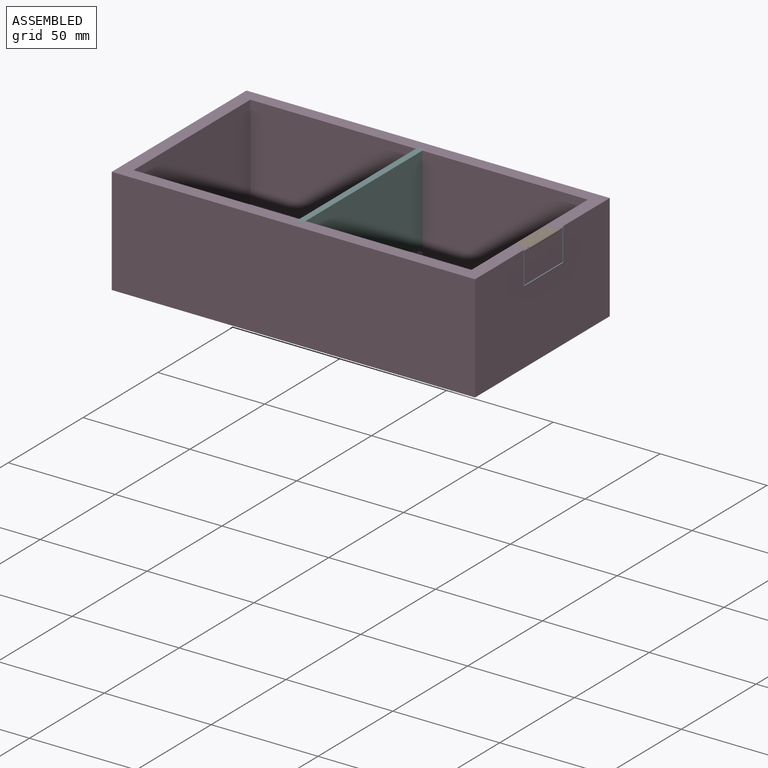
[diagram: assembled view]
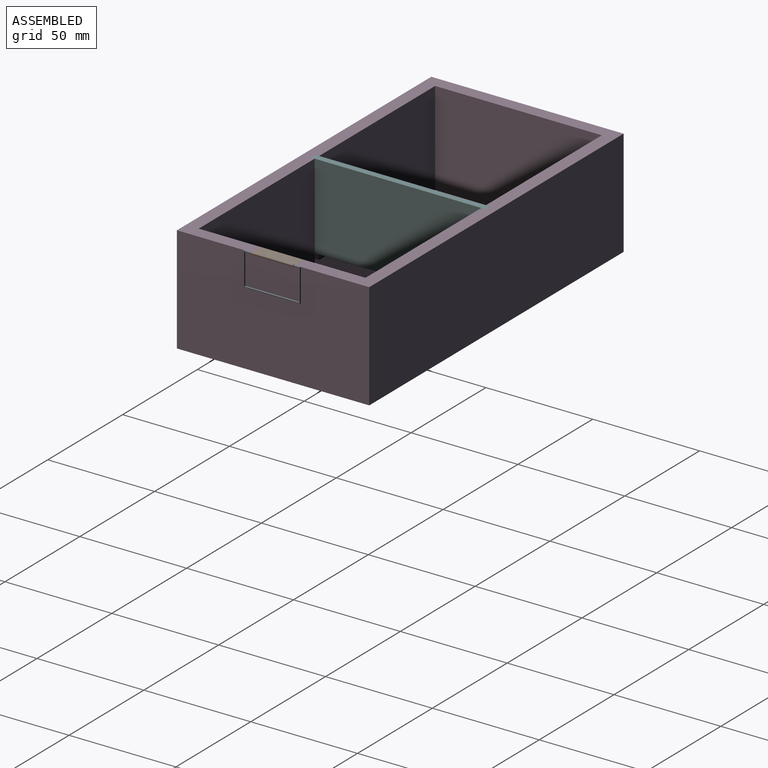
[diagram: assembled view, second angle]
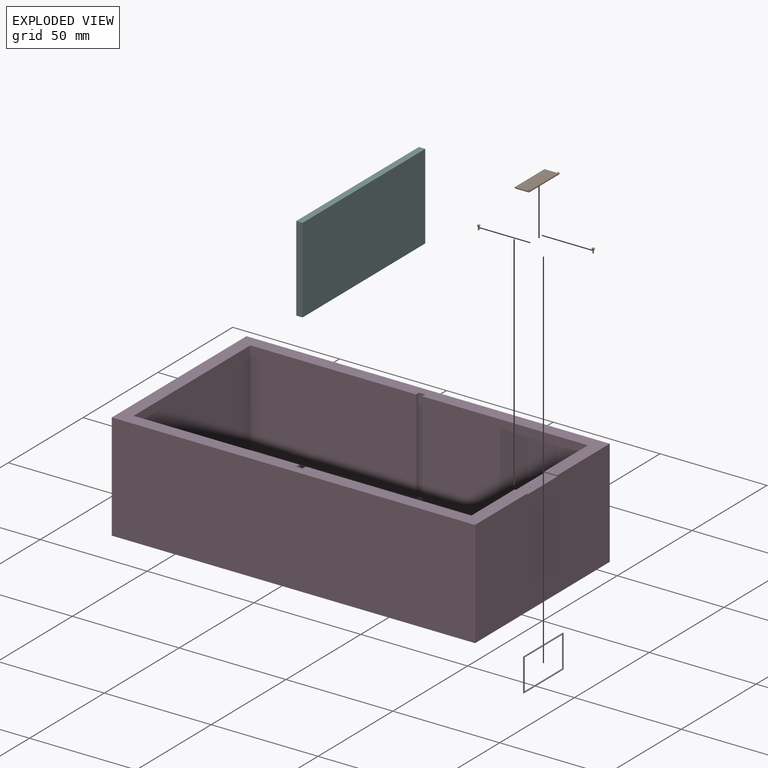
[diagram: exploded view]
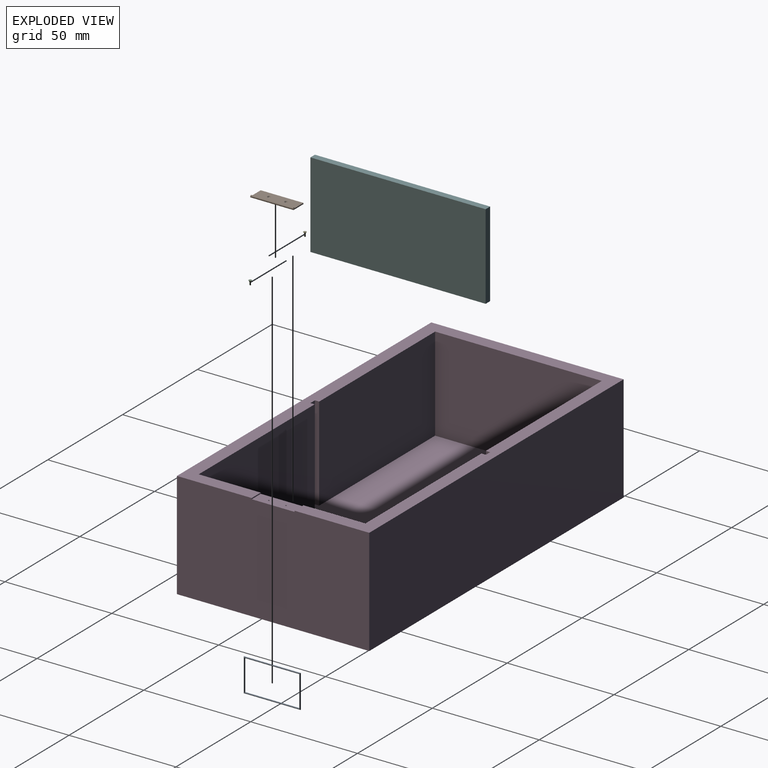
[diagram: exploded view, second angle]
ASSEMBLY  parts=6 mates=5
PART A: 4 faces, bbox 15.6x26.6x0.6 mm
  f0: cylinder r=0.3mm len=15.6mm, axis (-1,0,0), area 28.3mm2, adj f1,f3
  f1: cylinder r=0.3mm len=26.6mm, axis (0,1,0), area 49mm2, adj f0,f2
  f2: cylinder r=0.3mm len=15.6mm, axis (1,0,0), area 28.3mm2, adj f1,f3
  f3: cylinder r=0.3mm len=26.6mm, axis (0,-1,0), area 49mm2, adj f0,f2
PART B: 9 faces, bbox 7x20x1 mm
  f0: plane 7x1mm, normal (0,-1,0), area 3.6mm2, adj f2,f3,f4,f5,f8
  f1: plane 7x1mm, normal (0,1,0), area 3.6mm2, adj f2,f3,f4,f5,f8
  f2: plane 20x0.5mm, normal (-1,0,0), area 10mm2, adj f0,f1,f3,f4
  f3: plane 20x6.5mm, normal (0,0,-1), area 129mm2, adj f0,f1,f2,f5,f6,f7
  f4: plane 20x6mm, normal (0,0,1), area 116.5mm2, adj f0,f1,f2,f5,f6,f7
  f5: cylinder r=0.5mm len=20mm, axis (0,-1,0), area 47.1mm2, adj f0,f1,f3,f4
  f6: cone r=0.3mm half-angle=35deg, axis (0,0,1), area 2.2mm2, adj f3,f4
  f7: cone r=0.3mm half-angle=35deg, axis (0,0,1), area 2.2mm2, adj f3,f4
  f8: cylinder r=0.3mm len=20mm, axis (0,-1,0), area 37.7mm2, adj f0,f1
PART C: 4 faces, bbox 1.5x1.5x2.2 mm
  f0: plane 1.5x1.5mm, normal (0,0,1), area 1.8mm2, adj f1
  f1: cone r=0.3mm half-angle=35deg, axis (0,0,1), area 2.6mm2, adj f0,f3
  f2: cone r=0mm half-angle=59deg, axis (0,0,1), area 0.3mm2, adj f3
  f3: cylinder r=0.3mm len=1.36mm, axis (0,0,1), area 2.6mm2, adj f1,f2
PART D: 28 faces, bbox 170x90x50 mm
  f0: cone r=0.3mm half-angle=35deg, axis (0,0,1), area 0.4mm2, adj f2,f5
  f1: cone r=0mm half-angle=59deg, axis (0,0,1), area 0.3mm2, adj f2
  f2: cylinder r=0.3mm len=1.36mm, axis (0,0,1), area 2.6mm2, adj f0,f1
  f3: plane 6x0.5mm, normal (0,1,0), area 3mm2, adj f5,f22,f23,f24
  f4: plane 6x0.5mm, normal (0,-1,0), area 3mm2, adj f5,f22,f23,f24
  f5: plane 20x6mm, normal (0,0,1), area 119mm2, adj f0,f3,f4,f22,f23,f27
  f6: plane 90x50mm, normal (-1,0,0), area 4500mm2, adj f16,f17,f18,f24
  f7: plane 44x2mm, normal (-1,0,0), area 88mm2, adj f8,f20,f21,f24
  f8: plane 44x3mm, normal (0,-1,0), area 132mm2, adj f7,f9,f20,f24
  f9: plane 44x2mm, normal (1,0,0), area 88mm2, adj f8,f10,f20,f24
  f10: plane 77.5x44mm, normal (0,-1,0), area 3410mm2, adj f9,f11,f20,f24
  f11: plane 78x44mm, normal (1,0,0), area 3432mm2, adj f10,f12,f20,f24
  f12: plane 77.5x44mm, normal (0,1,0), area 3410mm2, adj f11,f13,f20,f24
  f13: plane 44x2mm, normal (1,0,0), area 88mm2, adj f12,f14,f20,f24
  f14: plane 44x3mm, normal (0,1,0), area 132mm2, adj f13,f15,f20,f24
  f15: plane 44x2mm, normal (-1,0,0), area 88mm2, adj f14,f19,f20,f24
  f16: plane 170x50mm, normal (0,1,0), area 8500mm2, adj f6,f17,f23,f24
  f17: plane 170x90mm, normal (0,0,-1), area 15300mm2, adj f6,f16,f18,f23
  f18: plane 170x50mm, normal (0,-1,0), area 8500mm2, adj f6,f17,f23,f24
  f19: plane 77.5x44mm, normal (0,1,0), area 3410mm2, adj f15,f20,f22,f24
  f20: plane 158x82mm, normal (0,0,1), area 12336mm2, adj f7,f8,f9,f10,f11,f12,f13,f14
  f21: plane 77.5x44mm, normal (0,-1,0), area 3410mm2, adj f7,f20,f22,f24
  f22: plane 78x44mm, normal (-1,0,0), area 3422mm2, adj f3,f4,f5,f19,f20,f21,f24
  f23: plane 90x50mm, normal (1,0,0), area 4490mm2, adj f3,f4,f5,f16,f17,f18,f24
  f24: plane 170x90mm, normal (0,0,1), area 2844mm2, adj f3,f4,f6,f7,f8,f9,f10,f11
  f25: cone r=0mm half-angle=59deg, axis (0,0,1), area 0.3mm2, adj f26
  f26: cylinder r=0.3mm len=1.36mm, axis (0,0,1), area 2.6mm2, adj f25,f27
  f27: cone r=0.3mm half-angle=35deg, axis (0,0,1), area 0.4mm2, adj f5,f26
PART E: 4 faces, bbox 1.5x1.5x2.2 mm
  f0: plane 1.5x1.5mm, normal (0,0,1), area 1.8mm2, adj f1
  f1: cone r=0.3mm half-angle=35deg, axis (0,0,1), area 2.6mm2, adj f0,f2
  f2: cylinder r=0.3mm len=1.36mm, axis (0,0,1), area 2.6mm2, adj f1,f3
  f3: cone r=0mm half-angle=59deg, axis (0,0,1), area 0.3mm2, adj f2
PART F: 6 faces, bbox 3x82x40 mm
  f0: plane 82x3mm, normal (0,0,1), area 246mm2, adj f1,f3,f4,f5
  f1: plane 82x40mm, normal (-1,0,0), area 3280mm2, adj f0,f2,f3,f4
  f2: plane 82x3mm, normal (0,0,-1), area 246mm2, adj f1,f3,f4,f5
  f3: plane 40x3mm, normal (0,-1,0), area 120mm2, adj f0,f1,f2,f5
  f4: plane 40x3mm, normal (0,1,0), area 120mm2, adj f0,f1,f2,f5
  f5: plane 82x40mm, normal (1,0,0), area 3280mm2, adj f0,f2,f3,f4
PLACE A rot(axis=(0,1,0),90deg) t=(35.5,-0.04,135.5)mm
PLACE B at identity
PLACE C at identity
PLACE D at identity fixed
PLACE E at identity
PLACE F t=(0,0,4)mm
MATE fastened C.f1 <-> B.f7  axis (0,0,1) through (82,4,50)mm
MATE fastened B.f3 <-> D.f5  axis (0,0,1) through (79,10,49.5)mm
MATE fastened E.f1 <-> B.f6  axis (0,0,1) through (82,-4,50)mm
MATE slider D.f24 <-> F.f0  axis (0,0,1) through (-1.5,41,50)mm
MATE revolute B.f5 <-> A.f3  axis (0,-1,0) through (85.5,-10,50)mm
